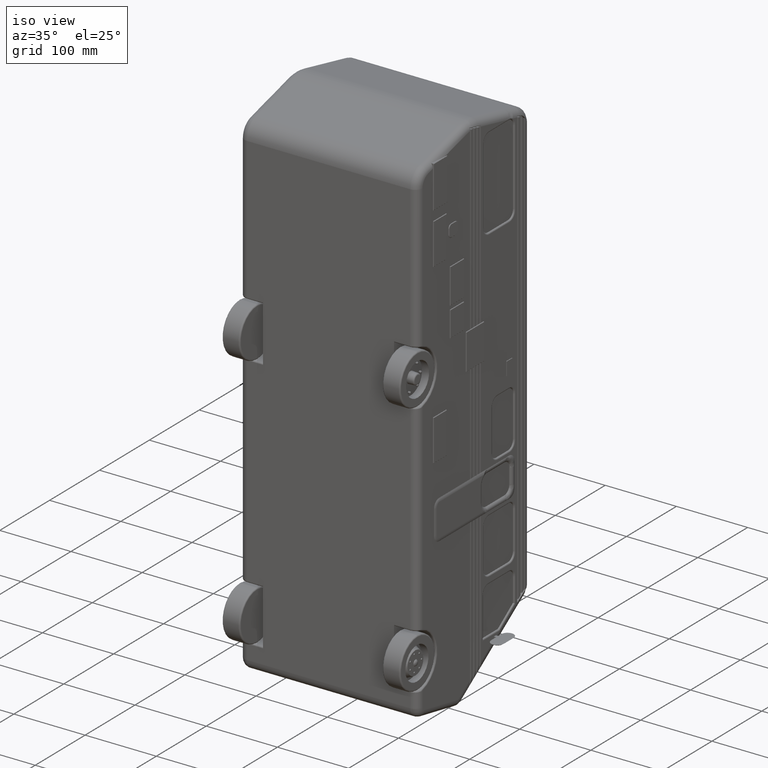
[diagram: clean part render]
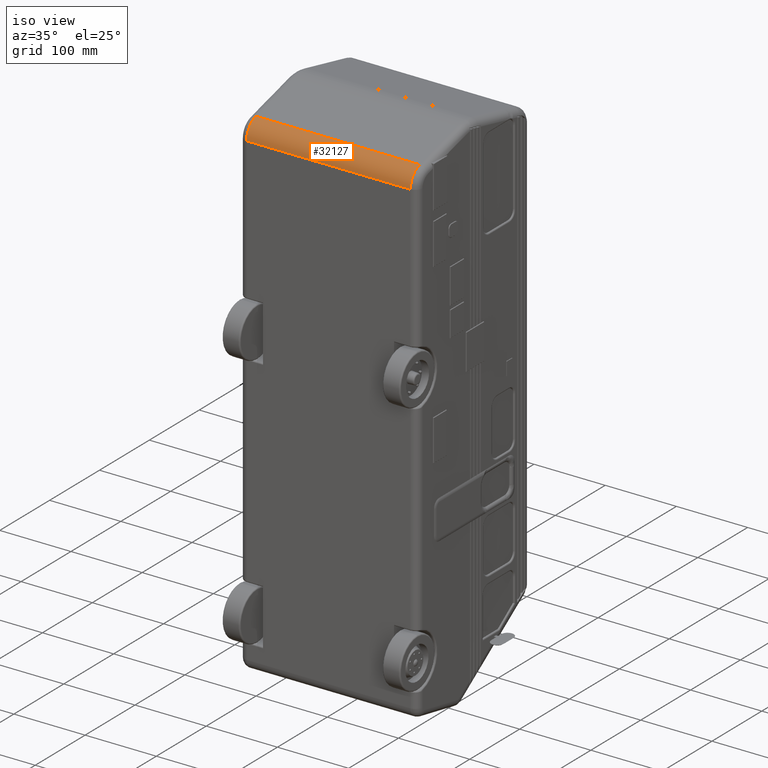
[diagram: same view with one face highlighted and labeled with its STEP entity id]
A machine part, iso view. The second image highlights one B-rep face of the part: STEP entity #32127.
In plain terms, the highlighted cylindrical surface (edge-blend (fillet) strip) has radius 25 mm, axis along (-1, -0, -0).
Its self-contained STEP definition (entity closure, byte-faithful):
#1153 = CIRCLE ( 'NONE', #18221, 24.99999999999999289 ) ;
#1202 = VERTEX_POINT ( 'NONE', #32692 ) ;
#4390 = VECTOR ( 'NONE', #21061, 1000.000000000000000 ) ;
#4547 = DIRECTION ( 'NONE',  ( 1.000000000000000000, 0.000000000000000000, -0.000000000000000000 ) ) ;
#4627 = CARTESIAN_POINT ( 'NONE',  ( 125.0000000000000000, 127.4475628866762520, -123.6542225603252092 ) ) ;
#4908 = ORIENTED_EDGE ( 'NONE', *, *, #27205, .T. ) ;
#5006 = ORIENTED_EDGE ( 'NONE', *, *, #6158, .F. ) ;
#5887 = CARTESIAN_POINT ( 'NONE',  ( 125.0000000000000000, 121.0393618654884165, -99.48947634456604305 ) ) ;
#6158 = EDGE_CURVE ( 'NONE', #40238, #38640, #17630, .T. ) ;
#8388 = CARTESIAN_POINT ( 'NONE',  ( -114.9999999999999858, 127.4475628866762520, -123.6542225603252092 ) ) ;
#10022 = DIRECTION ( 'NONE',  ( -1.000000000000000000, -0.000000000000000000, 0.000000000000000000 ) ) ;
#11435 = CARTESIAN_POINT ( 'NONE',  ( 125.0000000000000000, 102.4475628866762520, -123.6542225603253513 ) ) ;
#14055 = CYLINDRICAL_SURFACE ( 'NONE', #21917, 24.99999999999999289 ) ;
#14332 = CARTESIAN_POINT ( 'NONE',  ( 115.0000000000000000, 121.0393618654884165, -99.48947634456604305 ) ) ;
#15325 = EDGE_LOOP ( 'NONE', ( #5006, #28321, #4908, #17177 ) ) ;
#15656 = EDGE_CURVE ( 'NONE', #1202, #38640, #1153, .T. ) ;
#15768 = DIRECTION ( 'NONE',  ( -1.000000000000000000, -0.000000000000000000, -0.000000000000000000 ) ) ;
#17177 = ORIENTED_EDGE ( 'NONE', *, *, #15656, .T. ) ;
#17630 = LINE ( 'NONE', #11435, #4390 ) ;
#18221 = AXIS2_PLACEMENT_3D ( 'NONE', #8388, #4547, #24455 ) ;
#20080 = CIRCLE ( 'NONE', #35736, 24.99999999999999289 ) ;
#21061 = DIRECTION ( 'NONE',  ( -1.000000000000000000, -0.000000000000000000, -0.000000000000000000 ) ) ;
#21917 = AXIS2_PLACEMENT_3D ( 'NONE', #4627, #27298, #34071 ) ;
#22747 = EDGE_CURVE ( 'NONE', #40238, #30043, #20080, .T. ) ;
#24455 = DIRECTION ( 'NONE',  ( 0.000000000000000000, 0.000000000000000000, 1.000000000000000000 ) ) ;
#27205 = EDGE_CURVE ( 'NONE', #30043, #1202, #32738, .T. ) ;
#27298 = DIRECTION ( 'NONE',  ( -1.000000000000000000, -0.000000000000000000, -0.000000000000000000 ) ) ;
#28321 = ORIENTED_EDGE ( 'NONE', *, *, #22747, .T. ) ;
#28387 = CARTESIAN_POINT ( 'NONE',  ( 115.0000000000000000, 102.4475628866762520, -123.6542225603253513 ) ) ;
#29462 = CARTESIAN_POINT ( 'NONE',  ( 115.0000000000000000, 127.4475628866762520, -123.6542225603252092 ) ) ;
#30043 = VERTEX_POINT ( 'NONE', #14332 ) ;
#32028 = DIRECTION ( 'NONE',  ( 0.000000000000000000, 0.000000000000000000, 1.000000000000000000 ) ) ;
#32127 = ADVANCED_FACE ( 'NONE', ( #37051 ), #14055, .T. ) ;
#32273 = VECTOR ( 'NONE', #15768, 1000.000000000000000 ) ;
#32692 = CARTESIAN_POINT ( 'NONE',  ( -114.9999999999999858, 121.0393618654884165, -99.48947634456604305 ) ) ;
#32738 = LINE ( 'NONE', #5887, #32273 ) ;
#34071 = DIRECTION ( 'NONE',  ( 0.000000000000000000, 0.000000000000000000, 1.000000000000000000 ) ) ;
#35110 = CARTESIAN_POINT ( 'NONE',  ( -114.9999999999999858, 102.4475628866762520, -123.6542225603253513 ) ) ;
#35736 = AXIS2_PLACEMENT_3D ( 'NONE', #29462, #10022, #32028 ) ;
#37051 = FACE_OUTER_BOUND ( 'NONE', #15325, .T. ) ;
#38640 = VERTEX_POINT ( 'NONE', #35110 ) ;
#40238 = VERTEX_POINT ( 'NONE', #28387 ) ;